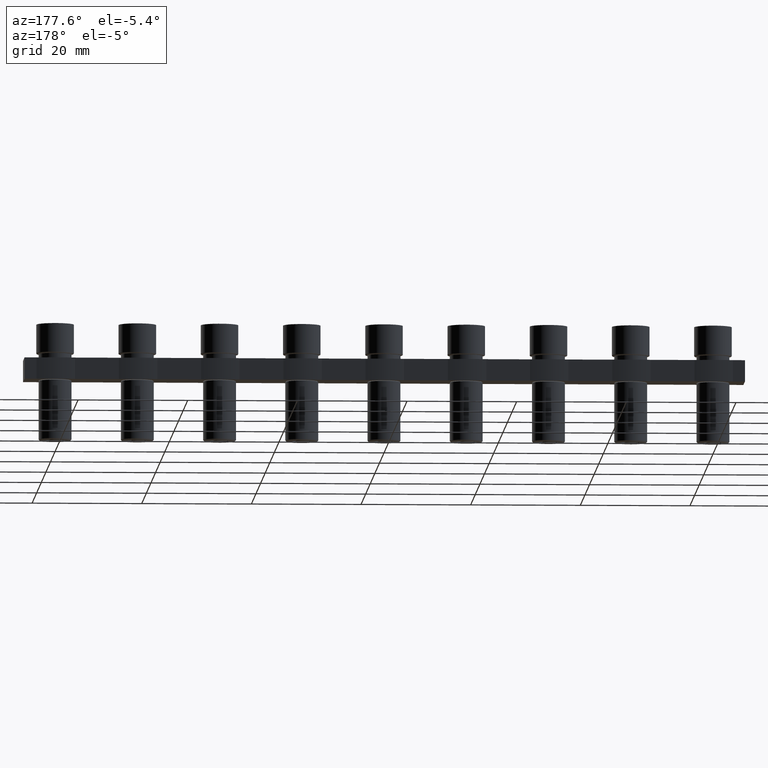
[diagram: clean part render]
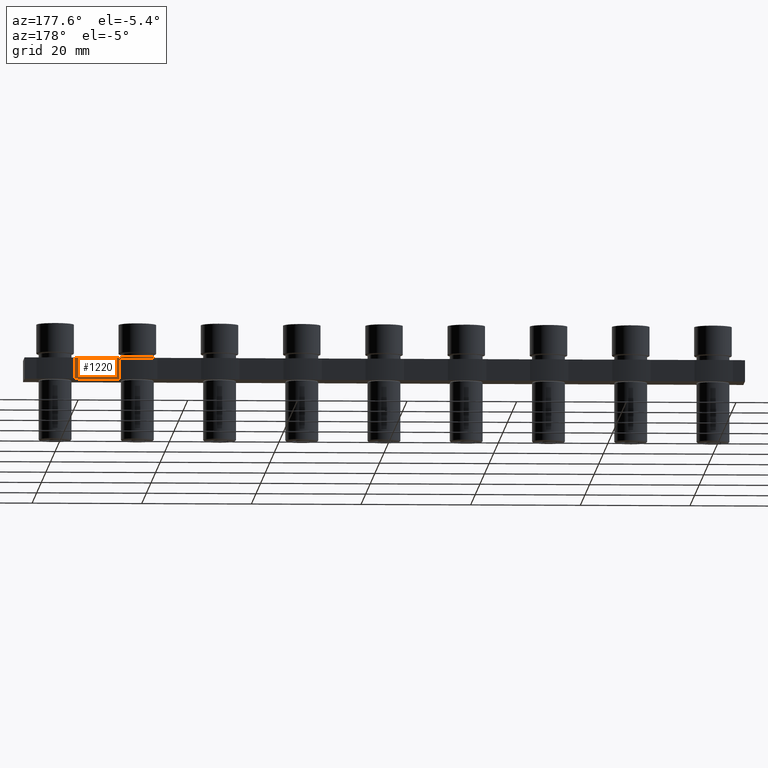
[diagram: same view with one face highlighted and labeled with its STEP entity id]
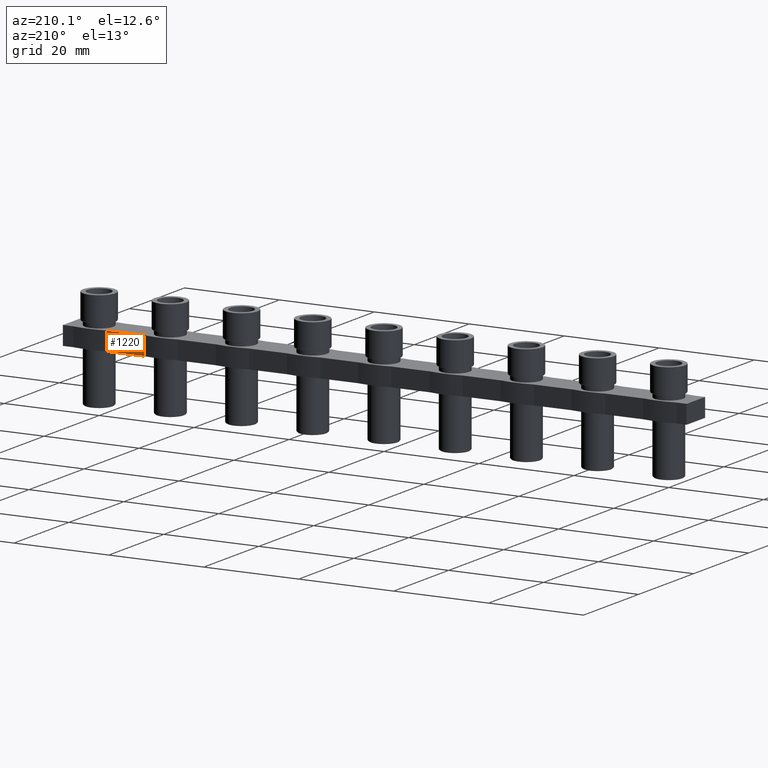
[diagram: same view with one face highlighted and labeled with its STEP entity id]
A machine part, auxiliary view. The second image highlights one B-rep face of the part: STEP entity #1220.
A second angle (auxiliary view) of the same face is appended — the face is thin or edge-on in the first view.
In plain terms, the highlighted planar face has unit normal (0, -1, 0).
Its self-contained STEP definition (entity closure, byte-faithful):
#644 = EDGE_CURVE ( 'NONE', #4372, #4329, #15491, .T. ) ;
#657 = EDGE_CURVE ( 'NONE', #4330, #4326, #15604, .T. ) ;
#1220 = ADVANCED_FACE ( 'NONE', ( #9678 ), #9674, .F. ) ;
#1548 = VECTOR ( 'NONE', #15478, 1000.000000000000000 ) ;
#1553 = VECTOR ( 'NONE', #15585, 1000.000000000000000 ) ;
#4326 = VERTEX_POINT ( 'NONE', #13902 ) ;
#4329 = VERTEX_POINT ( 'NONE', #13912 ) ;
#4330 = VERTEX_POINT ( 'NONE', #13885 ) ;
#4372 = VERTEX_POINT ( 'NONE', #7014 ) ;
#5016 = ORIENTED_EDGE ( 'NONE', *, *, #11928, .T. ) ;
#6087 = EDGE_LOOP ( 'NONE', ( #6923, #6921, #5016, #6912 ) ) ;
#6912 = ORIENTED_EDGE ( 'NONE', *, *, #644, .T. ) ;
#6921 = ORIENTED_EDGE ( 'NONE', *, *, #657, .T. ) ;
#6923 = ORIENTED_EDGE ( 'NONE', *, *, #11985, .T. ) ;
#7014 = CARTESIAN_POINT ( 'NONE',  ( 108.5000000000017300, 3.350000000000448200, -4.800000000000001600 ) ) ;
#7711 = CARTESIAN_POINT ( 'NONE',  ( 88.85000000000164300, 3.350000000000448600, -0.9000000000000014700 ) ) ;
#7722 = DIRECTION ( 'NONE',  ( 1.000000000000000000, 1.245679091791855700E-016, -0.0000000000000000000 ) ) ;
#7730 = LINE ( 'NONE', #7711, #12975 ) ;
#9674 = PLANE ( 'NONE',  #13122 ) ;
#9678 = FACE_OUTER_BOUND ( 'NONE', #6087, .T. ) ;
#9680 = CARTESIAN_POINT ( 'NONE',  ( 88.85000000000164300, 3.350000000000448600, -0.9000000000000014700 ) ) ;
#9681 = DIRECTION ( 'NONE',  ( -1.000000000000000000, -1.245679091791855700E-016, 0.0000000000000000000 ) ) ;
#9698 = DIRECTION ( 'NONE',  ( 1.245679091791855700E-016, -1.000000000000000000, 0.0000000000000000000 ) ) ;
#11928 = EDGE_CURVE ( 'NONE', #4326, #4372, #16531, .T. ) ;
#11985 = EDGE_CURVE ( 'NONE', #4329, #4330, #7730, .T. ) ;
#12922 = VECTOR ( 'NONE', #16546, 1000.000000000000000 ) ;
#12975 = VECTOR ( 'NONE', #7722, 1000.000000000000000 ) ;
#13122 = AXIS2_PLACEMENT_3D ( 'NONE', #9680, #9698, #9681 ) ;
#13885 = CARTESIAN_POINT ( 'NONE',  ( 116.5000000000015600, 3.350000000000505500, -0.9000000000000014700 ) ) ;
#13902 = CARTESIAN_POINT ( 'NONE',  ( 116.5000000000015600, 3.350000000000505500, -4.800000000000001600 ) ) ;
#13912 = CARTESIAN_POINT ( 'NONE',  ( 108.5000000000016900, 3.350000000000452200, -0.9000000000000014700 ) ) ;
#15478 = DIRECTION ( 'NONE',  ( 0.0000000000000000000, 0.0000000000000000000, 1.000000000000000000 ) ) ;
#15491 = LINE ( 'NONE', #15518, #1548 ) ;
#15518 = CARTESIAN_POINT ( 'NONE',  ( 108.5000000000017300, 3.350000000000448200, -11.80160695840604700 ) ) ;
#15585 = DIRECTION ( 'NONE',  ( -0.0000000000000000000, -0.0000000000000000000, -1.000000000000000000 ) ) ;
#15604 = LINE ( 'NONE', #15625, #1553 ) ;
#15625 = CARTESIAN_POINT ( 'NONE',  ( 116.5000000000016300, 3.350000000000513900, -11.80160695840604700 ) ) ;
#16531 = LINE ( 'NONE', #16532, #12922 ) ;
#16532 = CARTESIAN_POINT ( 'NONE',  ( 167.8500000000016700, 3.350000000000465100, -4.800000000000001600 ) ) ;
#16546 = DIRECTION ( 'NONE',  ( -1.000000000000000000, -2.491358183583711900E-016, -0.0000000000000000000 ) ) ;